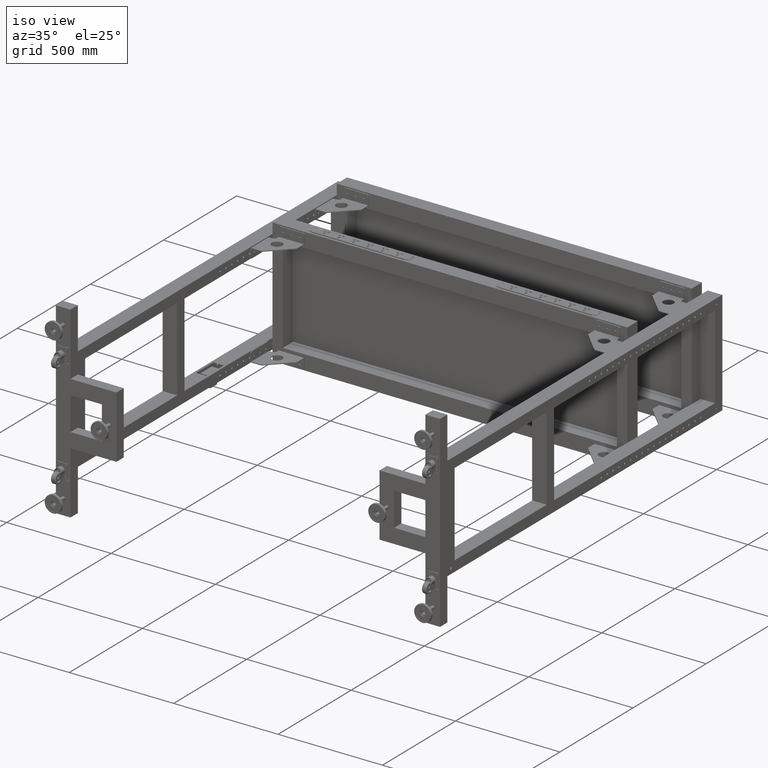
[diagram: clean part render]
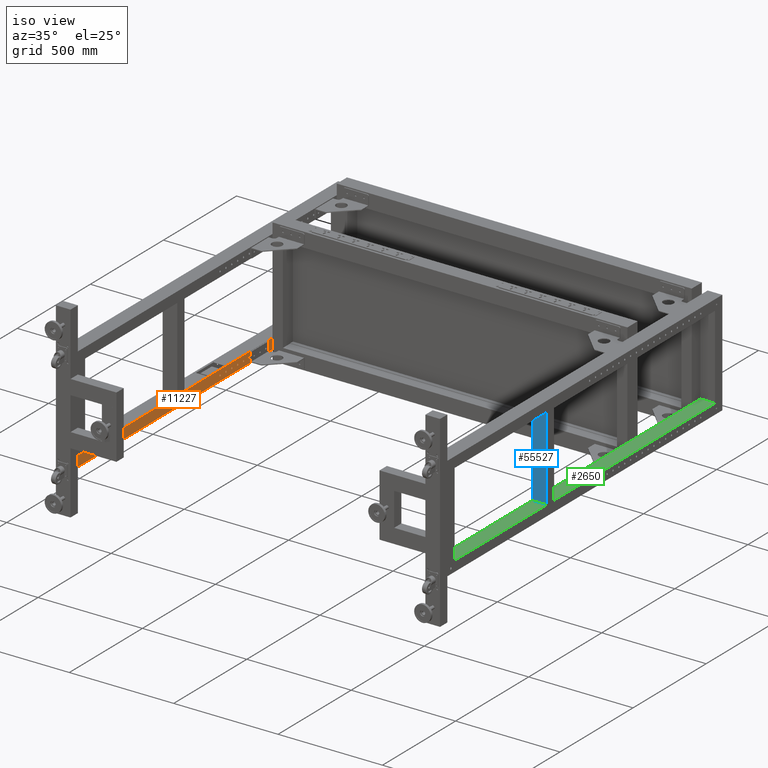
[diagram: same view with three faces highlighted in distinct colors, each labeled with its STEP entity id]
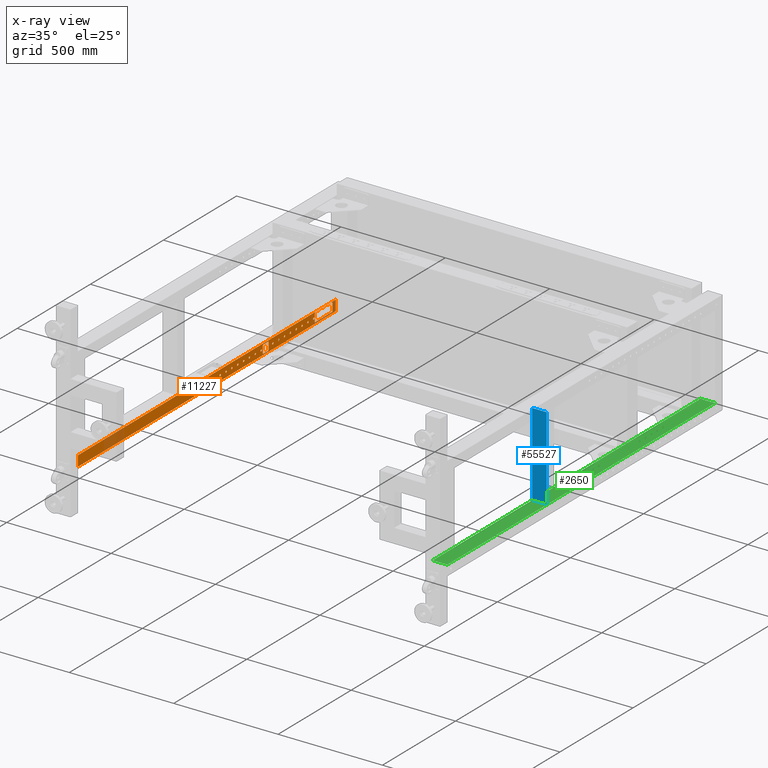
[diagram: x-ray of the same camera — body ghosted, the three highlighted faces saturated]
A machine part, iso view with three faces highlighted in distinct colors.
The next image is the same camera in x-ray (body ghosted, the three faces saturated) — at least one of them is partly hidden behind the body in this view.
Their STEP definitions:

[orange] entity #11227 — the highlighted planar face has unit normal (1, 0, -0).
#244 = VERTEX_POINT ( 'NONE', #6420 ) ;
#471 = DIRECTION ( 'NONE',  ( 1.000000000000000000, 0.000000000000000000, 0.000000000000000000 ) ) ;
#539 = ORIENTED_EDGE ( 'NONE', *, *, #52082, .F. ) ;
#592 = EDGE_CURVE ( 'NONE', #56812, #39507, #69529, .T. ) ;
#723 = CARTESIAN_POINT ( 'NONE',  ( -1268.172487437184827, 489.4410804020110390, -225.0000000000000000 ) ) ;
#734 = CARTESIAN_POINT ( 'NONE',  ( -1268.172487437184827, 420.4410804020109822, -240.0000000000000000 ) ) ;
#917 = EDGE_CURVE ( 'NONE', #71750, #244, #68107, .T. ) ;
#959 = EDGE_CURVE ( 'NONE', #70821, #3868, #71944, .T. ) ;
#979 = DIRECTION ( 'NONE',  ( -2.775557561562890365E-16, 8.326672684688670109E-16, -1.000000000000000000 ) ) ;
#992 = FACE_BOUND ( 'NONE', #26879, .T. ) ;
#1137 = EDGE_CURVE ( 'NONE', #72301, #45992, #70679, .T. ) ;
#1425 = EDGE_CURVE ( 'NONE', #44662, #67855, #3685, .T. ) ;
#1611 = CARTESIAN_POINT ( 'NONE',  ( -1268.172487437184827, 775.9410804020110390, -243.9999999999986926 ) ) ;
#1642 = DIRECTION ( 'NONE',  ( 1.000000000000000000, 0.000000000000000000, 0.000000000000000000 ) ) ;
#1778 = FACE_BOUND ( 'NONE', #13274, .T. ) ;
#1805 = DIRECTION ( 'NONE',  ( 0.000000000000000000, 0.000000000000000000, -1.000000000000000000 ) ) ;
#1944 = CARTESIAN_POINT ( 'NONE',  ( -1268.172487437184827, 769.4410804020110390, -220.5000000000000000 ) ) ;
#2158 = FACE_BOUND ( 'NONE', #42132, .T. ) ;
#2214 = EDGE_LOOP ( 'NONE', ( #35581, #13930 ) ) ;
#2253 = DIRECTION ( 'NONE',  ( 1.000000000000000000, 0.000000000000000000, 0.000000000000000000 ) ) ;
#2334 = CARTESIAN_POINT ( 'NONE',  ( -1268.172487437184827, 609.4410804020110390, -229.5000000000000000 ) ) ;
#2768 = DIRECTION ( 'NONE',  ( 1.000000000000000000, 0.000000000000000000, 0.000000000000000000 ) ) ;
#2782 = ORIENTED_EDGE ( 'NONE', *, *, #12398, .F. ) ;
#2818 = EDGE_CURVE ( 'NONE', #76811, #65071, #64611, .T. ) ;
#2924 = EDGE_CURVE ( 'NONE', #40168, #49149, #41558, .T. ) ;
#2930 = EDGE_CURVE ( 'NONE', #3868, #70821, #17359, .T. ) ;
#2933 = DIRECTION ( 'NONE',  ( 0.000000000000000000, 0.000000000000000000, -1.000000000000000000 ) ) ;
#3139 = EDGE_CURVE ( 'NONE', #3269, #10568, #66898, .T. ) ;
#3269 = VERTEX_POINT ( 'NONE', #38221 ) ;
#3685 = LINE ( 'NONE', #52351, #15772 ) ;
#3846 = VERTEX_POINT ( 'NONE', #32153 ) ;
#3864 = EDGE_CURVE ( 'NONE', #57431, #19480, #68854, .T. ) ;
#3868 = VERTEX_POINT ( 'NONE', #33328 ) ;
#4201 = ORIENTED_EDGE ( 'NONE', *, *, #6977, .F. ) ;
#4351 = VECTOR ( 'NONE', #16446, 1000.000000000000000 ) ;
#4394 = CARTESIAN_POINT ( 'NONE',  ( -1268.172487437184827, 129.4410804020110675, -225.0000000000000000 ) ) ;
#4553 = VERTEX_POINT ( 'NONE', #43861 ) ;
#4696 = CARTESIAN_POINT ( 'NONE',  ( -1268.172487437184827, 455.4410804020110390, -245.0000000000000000 ) ) ;
#4820 = EDGE_CURVE ( 'NONE', #4553, #67749, #69996, .T. ) ;
#5150 = EDGE_CURVE ( 'NONE', #49865, #15423, #69535, .T. ) ;
#5268 = CIRCLE ( 'NONE', #16722, 4.500000000000003553 ) ;
#5315 = LINE ( 'NONE', #10912, #29814 ) ;
#5505 = DIRECTION ( 'NONE',  ( 1.000000000000000000, 0.000000000000000000, 0.000000000000000000 ) ) ;
#5642 = AXIS2_PLACEMENT_3D ( 'NONE', #43006, #5505, #29864 ) ;
#5818 = AXIS2_PLACEMENT_3D ( 'NONE', #30892, #68388, #61991 ) ;
#5847 = CARTESIAN_POINT ( 'NONE',  ( -1268.172487437184827, 489.4410804020110390, -225.0000000000000000 ) ) ;
#5917 = ORIENTED_EDGE ( 'NONE', *, *, #75854, .F. ) ;
#6293 = CARTESIAN_POINT ( 'NONE',  ( -1268.172487437184827, 425.4410804020109822, -240.0000000000000000 ) ) ;
#6373 = DIRECTION ( 'NONE',  ( 1.000000000000000000, 0.000000000000000000, 0.000000000000000000 ) ) ;
#6420 = CARTESIAN_POINT ( 'NONE',  ( -1268.172487437184600, 896.9410804020110390, -207.9999999999986926 ) ) ;
#6977 = EDGE_CURVE ( 'NONE', #65071, #76811, #70409, .T. ) ;
#7062 = CARTESIAN_POINT ( 'NONE',  ( -1268.172487437184827, 529.4410804020111527, -225.0000000000000000 ) ) ;
#7217 = CARTESIAN_POINT ( 'NONE',  ( -1268.172487437184827, 249.4410804020110675, -225.0000000000000000 ) ) ;
#7234 = DIRECTION ( 'NONE',  ( 1.000000000000000000, 0.000000000000000000, 0.000000000000000000 ) ) ;
#7267 = CARTESIAN_POINT ( 'NONE',  ( -1268.172487437184827, 649.4410804020110390, -229.5000000000000000 ) ) ;
#7349 = FACE_BOUND ( 'NONE', #19439, .T. ) ;
#7488 = CARTESIAN_POINT ( 'NONE',  ( -1268.172487437184827, -844.5589195979889610, -250.0000000000000000 ) ) ;
#7591 = EDGE_CURVE ( 'NONE', #58127, #73116, #9274, .T. ) ;
#7608 = VERTEX_POINT ( 'NONE', #54913 ) ;
#7631 = CARTESIAN_POINT ( 'NONE',  ( -1268.172487437184827, 409.4410804020109822, -225.0000000000000000 ) ) ;
#7838 = VECTOR ( 'NONE', #29439, 1000.000000000000000 ) ;
#7924 = EDGE_CURVE ( 'NONE', #37976, #24316, #20870, .T. ) ;
#8045 = CIRCLE ( 'NONE', #71802, 4.500000000000003553 ) ;
#8520 = DIRECTION ( 'NONE',  ( 0.000000000000000000, 0.000000000000000000, -1.000000000000000000 ) ) ;
#8642 = EDGE_CURVE ( 'NONE', #31026, #24248, #72493, .T. ) ;
#8669 = AXIS2_PLACEMENT_3D ( 'NONE', #56796, #50818, #14892 ) ;
#8745 = CARTESIAN_POINT ( 'NONE',  ( -1268.172487437184827, 169.4410804020110106, -225.0000000000000000 ) ) ;
#8802 = DIRECTION ( 'NONE',  ( 1.000000000000000000, 0.000000000000000000, 0.000000000000000000 ) ) ;
#8860 = CARTESIAN_POINT ( 'NONE',  ( -1268.172487437184827, 851.4410804020109254, -243.9899999999986733 ) ) ;
#9249 = ORIENTED_EDGE ( 'NONE', *, *, #917, .T. ) ;
#9266 = AXIS2_PLACEMENT_3D ( 'NONE', #8745, #57048, #33507 ) ;
#9274 = CIRCLE ( 'NONE', #22071, 4.500000000000003553 ) ;
#9369 = DIRECTION ( 'NONE',  ( 0.000000000000000000, -1.000000000000000000, 0.000000000000000000 ) ) ;
#9639 = ORIENTED_EDGE ( 'NONE', *, *, #5150, .T. ) ;
#9694 = CARTESIAN_POINT ( 'NONE',  ( -1268.172487437184600, 889.9410804020109254, -200.9999999999986926 ) ) ;
#9799 = VERTEX_POINT ( 'NONE', #46821 ) ;
#10470 = CIRCLE ( 'NONE', #20679, 4.500000000000003553 ) ;
#10568 = VERTEX_POINT ( 'NONE', #45816 ) ;
#10912 = CARTESIAN_POINT ( 'NONE',  ( -1268.172487437184600, 896.9410804020110390, -200.9999999999986926 ) ) ;
#11197 = EDGE_CURVE ( 'NONE', #10568, #3269, #27013, .T. ) ;
#11227 = ADVANCED_FACE ( 'NONE', ( #62781, #56427, #26505, #25730, #55249, #44459, #19747, #24955, #75166, #32081, #42892, #67227, #43681, #1778, #26124, #7349, #992, #2158, #44074 ), #32486, .T. ) ;
#11834 = EDGE_LOOP ( 'NONE', ( #5917, #61015 ) ) ;
#12020 = EDGE_CURVE ( 'NONE', #73116, #58127, #5268, .T. ) ;
#12242 = DIRECTION ( 'NONE',  ( 1.000000000000000000, 0.000000000000000000, 0.000000000000000000 ) ) ;
#12271 = DIRECTION ( 'NONE',  ( 1.000000000000000000, 0.000000000000000000, 0.000000000000000000 ) ) ;
#12398 = EDGE_CURVE ( 'NONE', #62225, #36461, #62299, .T. ) ;
#12701 = DIRECTION ( 'NONE',  ( 1.000000000000000000, 0.000000000000000000, 0.000000000000000000 ) ) ;
#13051 = ORIENTED_EDGE ( 'NONE', *, *, #35781, .F. ) ;
#13125 = CARTESIAN_POINT ( 'NONE',  ( -1268.172487437184600, 782.9410804020109254, -200.9999999999986926 ) ) ;
#13274 = EDGE_LOOP ( 'NONE', ( #63141, #24244 ) ) ;
#13325 = AXIS2_PLACEMENT_3D ( 'NONE', #13377, #56452, #1805 ) ;
#13377 = CARTESIAN_POINT ( 'NONE',  ( -1268.172487437184827, 209.4410804020110390, -225.0000000000000000 ) ) ;
#13516 = ORIENTED_EDGE ( 'NONE', *, *, #39125, .F. ) ;
#13519 = AXIS2_PLACEMENT_3D ( 'NONE', #38322, #42759, #36754 ) ;
#13930 = ORIENTED_EDGE ( 'NONE', *, *, #2930, .F. ) ;
#14025 = EDGE_LOOP ( 'NONE', ( #4201, #38626 ) ) ;
#14316 = DIRECTION ( 'NONE',  ( 0.000000000000000000, 0.000000000000000000, -1.000000000000000000 ) ) ;
#14440 = CARTESIAN_POINT ( 'NONE',  ( -1268.172487437184827, 569.4410804020110390, -225.0000000000000000 ) ) ;
#14500 = AXIS2_PLACEMENT_3D ( 'NONE', #16236, #28606, #72079 ) ;
#14892 = DIRECTION ( 'NONE',  ( 0.000000000000000000, 0.000000000000000000, -1.000000000000000000 ) ) ;
#15423 = VERTEX_POINT ( 'NONE', #31896 ) ;
#15459 = ORIENTED_EDGE ( 'NONE', *, *, #49503, .F. ) ;
#15772 = VECTOR ( 'NONE', #76678, 1000.000000000000000 ) ;
#16229 = AXIS2_PLACEMENT_3D ( 'NONE', #5847, #12242, #44525 ) ;
#16236 = CARTESIAN_POINT ( 'NONE',  ( -1268.172487437184827, 369.4410804020110959, -225.0000000000000000 ) ) ;
#16446 = DIRECTION ( 'NONE',  ( 0.000000000000000000, -1.000000000000000000, 0.000000000000000000 ) ) ;
#16722 = AXIS2_PLACEMENT_3D ( 'NONE', #37388, #2253, #68889 ) ;
#16993 = CARTESIAN_POINT ( 'NONE',  ( -1268.172487437184827, 129.4410804020110675, -225.0000000000000000 ) ) ;
#17359 = CIRCLE ( 'NONE', #13519, 4.500000000000003553 ) ;
#17754 = LINE ( 'NONE', #55629, #41746 ) ;
#17794 = EDGE_CURVE ( 'NONE', #72301, #15423, #61050, .T. ) ;
#17946 = VERTEX_POINT ( 'NONE', #58216 ) ;
#18226 = CARTESIAN_POINT ( 'NONE',  ( -1268.172487437184827, 460.4410804020110390, -240.0000000000000000 ) ) ;
#18370 = AXIS2_PLACEMENT_3D ( 'NONE', #41451, #52624, #76958 ) ;
#18421 = VERTEX_POINT ( 'NONE', #57723 ) ;
#18444 = CARTESIAN_POINT ( 'NONE',  ( -1268.172487437184827, 729.4410804020110390, -225.0000000000000000 ) ) ;
#18568 = EDGE_LOOP ( 'NONE', ( #63983, #77131 ) ) ;
#18970 = DIRECTION ( 'NONE',  ( 1.000000000000000000, 0.000000000000000000, 0.000000000000000000 ) ) ;
#19100 = CARTESIAN_POINT ( 'NONE',  ( -1268.172487437184827, 425.4410804020109822, -205.0000000000000284 ) ) ;
#19103 = CIRCLE ( 'NONE', #75184, 4.500000000000003553 ) ;
#19438 = EDGE_LOOP ( 'NONE', ( #25846, #43530 ) ) ;
#19439 = EDGE_LOOP ( 'NONE', ( #28288, #78843 ) ) ;
#19480 = VERTEX_POINT ( 'NONE', #19100 ) ;
#19747 = FACE_BOUND ( 'NONE', #78727, .T. ) ;
#20211 = ORIENTED_EDGE ( 'NONE', *, *, #66071, .F. ) ;
#20679 = AXIS2_PLACEMENT_3D ( 'NONE', #723, #67736, #74510 ) ;
#20685 = CARTESIAN_POINT ( 'NONE',  ( -1268.172487437184827, 919.4410804020110390, -200.0000000000000000 ) ) ;
#20768 = AXIS2_PLACEMENT_3D ( 'NONE', #7631, #8802, #43982 ) ;
#20870 = CIRCLE ( 'NONE', #50146, 4.499999999999893419 ) ;
#20903 = CARTESIAN_POINT ( 'NONE',  ( -1268.172487437184827, -844.5589195979889610, -250.0000000000000000 ) ) ;
#21083 = ORIENTED_EDGE ( 'NONE', *, *, #11197, .F. ) ;
#22071 = AXIS2_PLACEMENT_3D ( 'NONE', #62070, #74055, #68083 ) ;
#22749 = ORIENTED_EDGE ( 'NONE', *, *, #17794, .F. ) ;
#23008 = ORIENTED_EDGE ( 'NONE', *, *, #54767, .T. ) ;
#23305 = DIRECTION ( 'NONE',  ( 4.498682352102549724E-16, -0.000000000000000000, 1.000000000000000000 ) ) ;
#23375 = DIRECTION ( 'NONE',  ( 1.000000000000000000, 0.000000000000000000, 0.000000000000000000 ) ) ;
#23594 = CARTESIAN_POINT ( 'NONE',  ( -1268.172487437184827, 569.4410804020110390, -229.5000000000000000 ) ) ;
#23711 = DIRECTION ( 'NONE',  ( 0.000000000000000000, 0.000000000000000000, -1.000000000000000000 ) ) ;
#23772 = ORIENTED_EDGE ( 'NONE', *, *, #60285, .F. ) ;
#24173 = DIRECTION ( 'NONE',  ( -1.000000000000000000, 0.000000000000000000, 3.491776919586969661E-17 ) ) ;
#24244 = ORIENTED_EDGE ( 'NONE', *, *, #7591, .F. ) ;
#24248 = VERTEX_POINT ( 'NONE', #72344 ) ;
#24316 = VERTEX_POINT ( 'NONE', #40725 ) ;
#24688 = DIRECTION ( 'NONE',  ( 1.000000000000000000, 0.000000000000000000, 0.000000000000000000 ) ) ;
#24955 = FACE_BOUND ( 'NONE', #47231, .T. ) ;
#25655 = DIRECTION ( 'NONE',  ( 0.000000000000000000, 1.000000000000000000, 0.000000000000000000 ) ) ;
#25730 = FACE_BOUND ( 'NONE', #2214, .T. ) ;
#25846 = ORIENTED_EDGE ( 'NONE', *, *, #53286, .F. ) ;
#25917 = EDGE_CURVE ( 'NONE', #24316, #37976, #71903, .T. ) ;
#26124 = FACE_BOUND ( 'NONE', #71289, .T. ) ;
#26220 = CARTESIAN_POINT ( 'NONE',  ( -1268.172487437184827, 425.4410804020109822, -245.0000000000000000 ) ) ;
#26505 = FACE_BOUND ( 'NONE', #19438, .T. ) ;
#26797 = CIRCLE ( 'NONE', #33169, 4.500000000000003553 ) ;
#26879 = EDGE_LOOP ( 'NONE', ( #73895, #13516 ) ) ;
#26928 = EDGE_CURVE ( 'NONE', #24248, #44662, #42490, .T. ) ;
#27013 = CIRCLE ( 'NONE', #37209, 4.500000000000003553 ) ;
#27869 = CARTESIAN_POINT ( 'NONE',  ( -1268.172487437184827, 649.4410804020110390, -220.5000000000000000 ) ) ;
#28288 = ORIENTED_EDGE ( 'NONE', *, *, #68876, .F. ) ;
#28446 = ORIENTED_EDGE ( 'NONE', *, *, #65708, .F. ) ;
#28605 = VERTEX_POINT ( 'NONE', #20903 ) ;
#28606 = DIRECTION ( 'NONE',  ( 1.000000000000000000, 0.000000000000000000, 0.000000000000000000 ) ) ;
#28771 = DIRECTION ( 'NONE',  ( 1.000000000000000000, 0.000000000000000000, 0.000000000000000000 ) ) ;
#28797 = VERTEX_POINT ( 'NONE', #67512 ) ;
#29377 = DIRECTION ( 'NONE',  ( 1.000000000000000000, 0.000000000000000000, 0.000000000000000000 ) ) ;
#29439 = DIRECTION ( 'NONE',  ( 0.000000000000000000, 1.000000000000000000, 0.000000000000000000 ) ) ;
#29505 = DIRECTION ( 'NONE',  ( 1.000000000000000000, 0.000000000000000000, 0.000000000000000000 ) ) ;
#29814 = VECTOR ( 'NONE', #23305, 1000.000000000000000 ) ;
#29864 = DIRECTION ( 'NONE',  ( 0.000000000000000000, 0.000000000000000000, -1.000000000000000000 ) ) ;
#30202 = ORIENTED_EDGE ( 'NONE', *, *, #7924, .F. ) ;
#30204 = AXIS2_PLACEMENT_3D ( 'NONE', #7217, #471, #43544 ) ;
#30279 = ORIENTED_EDGE ( 'NONE', *, *, #72019, .F. ) ;
#30674 = DIRECTION ( 'NONE',  ( 0.000000000000000000, 0.000000000000000000, -1.000000000000000000 ) ) ;
#30822 = EDGE_CURVE ( 'NONE', #71577, #52954, #60259, .T. ) ;
#30892 = CARTESIAN_POINT ( 'NONE',  ( -1268.172487437184827, 769.4410804020110390, -225.0000000000000000 ) ) ;
#30900 = CARTESIAN_POINT ( 'NONE',  ( -1268.172487437184827, 455.4410804020110390, -205.0000000000000284 ) ) ;
#31026 = VERTEX_POINT ( 'NONE', #26220 ) ;
#31543 = EDGE_CURVE ( 'NONE', #49865, #244, #5315, .T. ) ;
#31583 = DIRECTION ( 'NONE',  ( 0.000000000000000000, 0.000000000000000000, -1.000000000000000000 ) ) ;
#31758 = EDGE_CURVE ( 'NONE', #71750, #45992, #35898, .T. ) ;
#31896 = CARTESIAN_POINT ( 'NONE',  ( -1268.172487437184827, 775.9410804020110390, -243.9899999999987017 ) ) ;
#32081 = FACE_BOUND ( 'NONE', #33162, .T. ) ;
#32100 = CARTESIAN_POINT ( 'NONE',  ( -1268.172487437184827, 369.4410804020110959, -225.0000000000000000 ) ) ;
#32153 = CARTESIAN_POINT ( 'NONE',  ( -1268.172487437184827, -844.5589195979889610, -200.0000000000000000 ) ) ;
#32461 = AXIS2_PLACEMENT_3D ( 'NONE', #78724, #47665, #23711 ) ;
#32465 = EDGE_CURVE ( 'NONE', #76030, #46110, #26797, .T. ) ;
#32486 = PLANE ( 'NONE',  #65246 ) ;
#32536 = AXIS2_PLACEMENT_3D ( 'NONE', #4394, #29505, #60596 ) ;
#32749 = ORIENTED_EDGE ( 'NONE', *, *, #4820, .F. ) ;
#32903 = CARTESIAN_POINT ( 'NONE',  ( -1268.172487437184827, 420.4410804020109822, -240.0000000000000000 ) ) ;
#33162 = EDGE_LOOP ( 'NONE', ( #28446, #69585 ) ) ;
#33169 = AXIS2_PLACEMENT_3D ( 'NONE', #35537, #28771, #41532 ) ;
#33328 = CARTESIAN_POINT ( 'NONE',  ( -1268.172487437184827, 209.4410804020110390, -220.5000000000000000 ) ) ;
#33507 = DIRECTION ( 'NONE',  ( 0.000000000000000000, 0.000000000000000000, -1.000000000000000000 ) ) ;
#33916 = AXIS2_PLACEMENT_3D ( 'NONE', #75538, #76319, #2933 ) ;
#34311 = AXIS2_PLACEMENT_3D ( 'NONE', #32100, #18970, #50462 ) ;
#34341 = AXIS2_PLACEMENT_3D ( 'NONE', #6293, #24688, #55387 ) ;
#34708 = ORIENTED_EDGE ( 'NONE', *, *, #8642, .F. ) ;
#34880 = ORIENTED_EDGE ( 'NONE', *, *, #58201, .F. ) ;
#34981 = DIRECTION ( 'NONE',  ( 0.000000000000000000, 0.000000000000000000, -1.000000000000000000 ) ) ;
#35387 = AXIS2_PLACEMENT_3D ( 'NONE', #78958, #49852, #48674 ) ;
#35495 = DIRECTION ( 'NONE',  ( 1.000000000000000000, 0.000000000000000000, 0.000000000000000000 ) ) ;
#35537 = CARTESIAN_POINT ( 'NONE',  ( -1268.172487437184827, 769.4410804020110390, -225.0000000000000000 ) ) ;
#35574 = VECTOR ( 'NONE', #74137, 1000.000000000000000 ) ;
#35581 = ORIENTED_EDGE ( 'NONE', *, *, #959, .F. ) ;
#35720 = AXIS2_PLACEMENT_3D ( 'NONE', #61027, #6373, #49881 ) ;
#35781 = EDGE_CURVE ( 'NONE', #36461, #62225, #71810, .T. ) ;
#35898 = LINE ( 'NONE', #52688, #61625 ) ;
#36111 = AXIS2_PLACEMENT_3D ( 'NONE', #63409, #2768, #63800 ) ;
#36312 = CARTESIAN_POINT ( 'NONE',  ( -1268.172487437184600, 775.9410804020110390, -207.9999999999986926 ) ) ;
#36461 = VERTEX_POINT ( 'NONE', #48353 ) ;
#36754 = DIRECTION ( 'NONE',  ( 0.000000000000000000, 0.000000000000000000, -1.000000000000000000 ) ) ;
#36907 = EDGE_CURVE ( 'NONE', #9799, #41518, #45258, .T. ) ;
#37209 = AXIS2_PLACEMENT_3D ( 'NONE', #16993, #23375, #41714 ) ;
#37283 = DIRECTION ( 'NONE',  ( 1.000000000000000000, 0.000000000000000000, -2.775557561562890365E-16 ) ) ;
#37388 = CARTESIAN_POINT ( 'NONE',  ( -1268.172487437184827, 649.4410804020110390, -225.0000000000000000 ) ) ;
#37976 = VERTEX_POINT ( 'NONE', #41500 ) ;
#38055 = DIRECTION ( 'NONE',  ( 0.000000000000000000, 0.000000000000000000, -1.000000000000000000 ) ) ;
#38221 = CARTESIAN_POINT ( 'NONE',  ( -1268.172487437184827, 129.4410804020110675, -229.5000000000000000 ) ) ;
#38313 = VERTEX_POINT ( 'NONE', #20685 ) ;
#38322 = CARTESIAN_POINT ( 'NONE',  ( -1268.172487437184827, 209.4410804020110390, -225.0000000000000000 ) ) ;
#38607 = DIRECTION ( 'NONE',  ( 0.000000000000000000, 0.000000000000000000, -1.000000000000000000 ) ) ;
#38626 = ORIENTED_EDGE ( 'NONE', *, *, #2818, .F. ) ;
#38642 = CARTESIAN_POINT ( 'NONE',  ( -1268.172487437184827, 609.4410804020110390, -220.5000000000000000 ) ) ;
#38657 = ORIENTED_EDGE ( 'NONE', *, *, #31758, .F. ) ;
#38660 = DIRECTION ( 'NONE',  ( 1.000000000000000000, 0.000000000000000000, 0.000000000000000000 ) ) ;
#38741 = CIRCLE ( 'NONE', #18370, 4.499999999999893419 ) ;
#38837 = AXIS2_PLACEMENT_3D ( 'NONE', #78792, #24173, #66869 ) ;
#38924 = CARTESIAN_POINT ( 'NONE',  ( -1268.172487437184827, 455.4410804020110390, -205.0000000000000284 ) ) ;
#39058 = EDGE_CURVE ( 'NONE', #53783, #28797, #56801, .T. ) ;
#39125 = EDGE_CURVE ( 'NONE', #46110, #76030, #78609, .T. ) ;
#39275 = EDGE_CURVE ( 'NONE', #19480, #4553, #45348, .T. ) ;
#39497 = CARTESIAN_POINT ( 'NONE',  ( -1268.172487437184827, 569.4410804020110390, -220.5000000000000000 ) ) ;
#39507 = VERTEX_POINT ( 'NONE', #2334 ) ;
#39552 = DIRECTION ( 'NONE',  ( 0.000000000000000000, 0.000000000000000000, -1.000000000000000000 ) ) ;
#39829 = CARTESIAN_POINT ( 'NONE',  ( -1268.172487437184827, -844.5589195979889610, -200.0000000000000000 ) ) ;
#40168 = VERTEX_POINT ( 'NONE', #74391 ) ;
#40185 = AXIS2_PLACEMENT_3D ( 'NONE', #72205, #41869, #59804 ) ;
#40410 = ORIENTED_EDGE ( 'NONE', *, *, #39058, .F. ) ;
#40414 = AXIS2_PLACEMENT_3D ( 'NONE', #74376, #74763, #38055 ) ;
#40692 = ORIENTED_EDGE ( 'NONE', *, *, #31543, .F. ) ;
#40725 = CARTESIAN_POINT ( 'NONE',  ( -1268.172487437184827, 289.4410804020109822, -229.5000000000000000 ) ) ;
#40848 = CIRCLE ( 'NONE', #35720, 4.500000000000003553 ) ;
#41239 = VECTOR ( 'NONE', #9369, 1000.000000000000000 ) ;
#41451 = CARTESIAN_POINT ( 'NONE',  ( -1268.172487437184827, 329.4410804020110390, -225.0000000000000000 ) ) ;
#41500 = CARTESIAN_POINT ( 'NONE',  ( -1268.172487437184827, 289.4410804020109822, -220.5000000000000000 ) ) ;
#41518 = VERTEX_POINT ( 'NONE', #72354 ) ;
#41532 = DIRECTION ( 'NONE',  ( 0.000000000000000000, 0.000000000000000000, -1.000000000000000000 ) ) ;
#41558 = CIRCLE ( 'NONE', #46510, 4.500000000000003553 ) ;
#41636 = EDGE_CURVE ( 'NONE', #28605, #68446, #43203, .T. ) ;
#41714 = DIRECTION ( 'NONE',  ( 0.000000000000000000, 0.000000000000000000, -1.000000000000000000 ) ) ;
#41746 = VECTOR ( 'NONE', #979, 1000.000000000000000 ) ;
#41775 = ORIENTED_EDGE ( 'NONE', *, *, #1137, .T. ) ;
#41869 = DIRECTION ( 'NONE',  ( 1.000000000000000000, 0.000000000000000000, 0.000000000000000000 ) ) ;
#42132 = EDGE_LOOP ( 'NONE', ( #539, #70612, #49666, #34708, #58182, #32749, #66921, #76857 ) ) ;
#42242 = DIRECTION ( 'NONE',  ( 0.000000000000000000, 0.000000000000000000, -1.000000000000000000 ) ) ;
#42490 = CIRCLE ( 'NONE', #36111, 5.000000000000004441 ) ;
#42759 = DIRECTION ( 'NONE',  ( 1.000000000000000000, 0.000000000000000000, 0.000000000000000000 ) ) ;
#42892 = FACE_BOUND ( 'NONE', #69992, .T. ) ;
#43006 = CARTESIAN_POINT ( 'NONE',  ( -1268.172487437184827, 289.4410804020109822, -225.0000000000000000 ) ) ;
#43203 = LINE ( 'NONE', #73528, #69893 ) ;
#43272 = CIRCLE ( 'NONE', #34341, 5.000000000000004441 ) ;
#43384 = DIRECTION ( 'NONE',  ( 0.000000000000000000, 0.000000000000000000, -1.000000000000000000 ) ) ;
#43515 = ORIENTED_EDGE ( 'NONE', *, *, #36907, .F. ) ;
#43530 = ORIENTED_EDGE ( 'NONE', *, *, #48892, .F. ) ;
#43544 = DIRECTION ( 'NONE',  ( 0.000000000000000000, 0.000000000000000000, -1.000000000000000000 ) ) ;
#43681 = FACE_BOUND ( 'NONE', #11834, .T. ) ;
#43692 = CIRCLE ( 'NONE', #9266, 4.500000000000003553 ) ;
#43720 = CARTESIAN_POINT ( 'NONE',  ( -1268.172487437184827, 769.4410804020110390, -229.5000000000000000 ) ) ;
#43861 = CARTESIAN_POINT ( 'NONE',  ( -1268.172487437184827, 420.4410804020109822, -210.0000000000000000 ) ) ;
#43982 = DIRECTION ( 'NONE',  ( 0.000000000000000000, 0.000000000000000000, -1.000000000000000000 ) ) ;
#44074 = FACE_OUTER_BOUND ( 'NONE', #56906, .T. ) ;
#44459 = FACE_BOUND ( 'NONE', #49797, .T. ) ;
#44525 = DIRECTION ( 'NONE',  ( 0.000000000000000000, 0.000000000000000000, -1.000000000000000000 ) ) ;
#44662 = VERTEX_POINT ( 'NONE', #18226 ) ;
#44848 = CARTESIAN_POINT ( 'NONE',  ( -1268.172487437184827, 169.4410804020110106, -225.0000000000000000 ) ) ;
#45258 = CIRCLE ( 'NONE', #60503, 4.499999999999893419 ) ;
#45348 = CIRCLE ( 'NONE', #33916, 5.000000000000004441 ) ;
#45816 = CARTESIAN_POINT ( 'NONE',  ( -1268.172487437184827, 129.4410804020110675, -220.5000000000000000 ) ) ;
#45992 = VERTEX_POINT ( 'NONE', #13125 ) ;
#46110 = VERTEX_POINT ( 'NONE', #1944 ) ;
#46376 = EDGE_LOOP ( 'NONE', ( #53661, #21083 ) ) ;
#46510 = AXIS2_PLACEMENT_3D ( 'NONE', #18444, #1642, #74260 ) ;
#46557 = CARTESIAN_POINT ( 'NONE',  ( -1268.172487437184827, 455.4410804020110390, -210.0000000000000000 ) ) ;
#46563 = DIRECTION ( 'NONE',  ( 0.000000000000000000, 0.000000000000000000, -1.000000000000000000 ) ) ;
#46623 = LINE ( 'NONE', #39829, #7838 ) ;
#46821 = CARTESIAN_POINT ( 'NONE',  ( -1268.172487437184827, 329.4410804020110390, -229.5000000000000000 ) ) ;
#47231 = EDGE_LOOP ( 'NONE', ( #2782, #13051 ) ) ;
#47239 = EDGE_CURVE ( 'NONE', #52954, #71577, #62123, .T. ) ;
#47275 = ORIENTED_EDGE ( 'NONE', *, *, #25917, .F. ) ;
#47284 = CARTESIAN_POINT ( 'NONE',  ( -1268.172487437184827, 209.4410804020110390, -229.5000000000000000 ) ) ;
#47665 = DIRECTION ( 'NONE',  ( -1.000000000000000000, 0.000000000000000000, 3.491776919586969661E-17 ) ) ;
#47772 = VECTOR ( 'NONE', #52851, 1000.000000000000000 ) ;
#48353 = CARTESIAN_POINT ( 'NONE',  ( -1268.172487437184827, 369.4410804020110959, -220.5000000000000000 ) ) ;
#48674 = DIRECTION ( 'NONE',  ( 0.000000000000000000, 0.000000000000000000, -1.000000000000000000 ) ) ;
#48892 = EDGE_CURVE ( 'NONE', #55581, #55531, #19103, .T. ) ;
#49149 = VERTEX_POINT ( 'NONE', #74696 ) ;
#49350 = VERTEX_POINT ( 'NONE', #23594 ) ;
#49473 = CARTESIAN_POINT ( 'NONE',  ( -1268.172487437184827, 569.4410804020110390, -225.0000000000000000 ) ) ;
#49503 = EDGE_CURVE ( 'NONE', #28797, #53783, #40848, .T. ) ;
#49666 = ORIENTED_EDGE ( 'NONE', *, *, #26928, .F. ) ;
#49797 = EDGE_LOOP ( 'NONE', ( #47275, #30202 ) ) ;
#49852 = DIRECTION ( 'NONE',  ( 1.000000000000000000, 0.000000000000000000, 0.000000000000000000 ) ) ;
#49865 = VERTEX_POINT ( 'NONE', #61629 ) ;
#49881 = DIRECTION ( 'NONE',  ( 0.000000000000000000, 0.000000000000000000, -1.000000000000000000 ) ) ;
#50146 = AXIS2_PLACEMENT_3D ( 'NONE', #57086, #7234, #31583 ) ;
#50462 = DIRECTION ( 'NONE',  ( 0.000000000000000000, 0.000000000000000000, -1.000000000000000000 ) ) ;
#50739 = CIRCLE ( 'NONE', #8669, 4.500000000000003553 ) ;
#50818 = DIRECTION ( 'NONE',  ( 1.000000000000000000, 0.000000000000000000, 0.000000000000000000 ) ) ;
#51189 = EDGE_CURVE ( 'NONE', #77365, #17946, #10470, .T. ) ;
#51569 = VECTOR ( 'NONE', #72122, 1000.000000000000000 ) ;
#51619 = CARTESIAN_POINT ( 'NONE',  ( -1268.172487437184827, 529.4410804020111527, -229.5000000000000000 ) ) ;
#52082 = EDGE_CURVE ( 'NONE', #67855, #57431, #53757, .T. ) ;
#52351 = CARTESIAN_POINT ( 'NONE',  ( -1268.172487437184827, 460.4410804020110390, -240.0000000000000000 ) ) ;
#52450 = CARTESIAN_POINT ( 'NONE',  ( -1268.172487437184827, 489.4410804020110390, -220.5000000000000000 ) ) ;
#52546 = CARTESIAN_POINT ( 'NONE',  ( -1268.172487437184827, 689.4410804020110390, -220.5000000000000000 ) ) ;
#52624 = DIRECTION ( 'NONE',  ( 1.000000000000000000, 0.000000000000000000, 0.000000000000000000 ) ) ;
#52688 = CARTESIAN_POINT ( 'NONE',  ( -1268.172487437184600, 775.9410804020110390, -200.9999999999986926 ) ) ;
#52851 = DIRECTION ( 'NONE',  ( -4.625929269271499719E-16, -3.700743415417200564E-15, -1.000000000000000000 ) ) ;
#52954 = VERTEX_POINT ( 'NONE', #57525 ) ;
#53286 = EDGE_CURVE ( 'NONE', #55531, #55581, #43692, .T. ) ;
#53444 = CARTESIAN_POINT ( 'NONE',  ( -1268.172487437184827, 329.4410804020110390, -225.0000000000000000 ) ) ;
#53661 = ORIENTED_EDGE ( 'NONE', *, *, #3139, .F. ) ;
#53706 = CARTESIAN_POINT ( 'NONE',  ( -1268.172487437184827, 609.4410804020110390, -225.0000000000000000 ) ) ;
#53757 = CIRCLE ( 'NONE', #74146, 5.000000000000004441 ) ;
#53783 = VERTEX_POINT ( 'NONE', #52546 ) ;
#54243 = ORIENTED_EDGE ( 'NONE', *, *, #66236, .F. ) ;
#54767 = EDGE_CURVE ( 'NONE', #3846, #28605, #67764, .T. ) ;
#54913 = CARTESIAN_POINT ( 'NONE',  ( -1268.172487437184827, 409.4410804020109822, -220.5000000000000000 ) ) ;
#55249 = FACE_BOUND ( 'NONE', #14025, .T. ) ;
#55387 = DIRECTION ( 'NONE',  ( 0.000000000000000000, 0.000000000000000000, 1.000000000000000000 ) ) ;
#55531 = VERTEX_POINT ( 'NONE', #56976 ) ;
#55581 = VERTEX_POINT ( 'NONE', #69354 ) ;
#55629 = CARTESIAN_POINT ( 'NONE',  ( -1268.172487437184827, 919.4410804020110390, -250.0000000000000000 ) ) ;
#55691 = CIRCLE ( 'NONE', #16229, 4.500000000000003553 ) ;
#56075 = CARTESIAN_POINT ( 'NONE',  ( -1268.172487437184827, 369.4410804020110959, -229.5000000000000000 ) ) ;
#56427 = FACE_BOUND ( 'NONE', #46376, .T. ) ;
#56452 = DIRECTION ( 'NONE',  ( 1.000000000000000000, 0.000000000000000000, 0.000000000000000000 ) ) ;
#56796 = CARTESIAN_POINT ( 'NONE',  ( -1268.172487437184827, 409.4410804020109822, -225.0000000000000000 ) ) ;
#56801 = CIRCLE ( 'NONE', #40414, 4.500000000000003553 ) ;
#56812 = VERTEX_POINT ( 'NONE', #38642 ) ;
#56906 = EDGE_LOOP ( 'NONE', ( #20211, #34880, #23008, #72941 ) ) ;
#56976 = CARTESIAN_POINT ( 'NONE',  ( -1268.172487437184827, 169.4410804020110106, -229.5000000000000000 ) ) ;
#57048 = DIRECTION ( 'NONE',  ( 1.000000000000000000, 0.000000000000000000, 0.000000000000000000 ) ) ;
#57086 = CARTESIAN_POINT ( 'NONE',  ( -1268.172487437184827, 289.4410804020109822, -225.0000000000000000 ) ) ;
#57431 = VERTEX_POINT ( 'NONE', #30900 ) ;
#57525 = CARTESIAN_POINT ( 'NONE',  ( -1268.172487437184827, 529.4410804020111527, -220.5000000000000000 ) ) ;
#57723 = CARTESIAN_POINT ( 'NONE',  ( -1268.172487437184827, 409.4410804020109822, -229.5000000000000000 ) ) ;
#58127 = VERTEX_POINT ( 'NONE', #27869 ) ;
#58182 = ORIENTED_EDGE ( 'NONE', *, *, #67778, .F. ) ;
#58201 = EDGE_CURVE ( 'NONE', #3846, #38313, #46623, .T. ) ;
#58216 = CARTESIAN_POINT ( 'NONE',  ( -1268.172487437184827, 489.4410804020110390, -229.5000000000000000 ) ) ;
#59707 = EDGE_CURVE ( 'NONE', #78031, #49350, #62809, .T. ) ;
#59804 = DIRECTION ( 'NONE',  ( 0.000000000000000000, 0.000000000000000000, -1.000000000000000000 ) ) ;
#59889 = CARTESIAN_POINT ( 'NONE',  ( -1268.172487437184827, 249.4410804020110675, -220.5000000000000000 ) ) ;
#60125 = EDGE_LOOP ( 'NONE', ( #54243, #30279 ) ) ;
#60218 = DIRECTION ( 'NONE',  ( 0.000000000000000000, -1.000000000000000000, 0.000000000000000000 ) ) ;
#60259 = CIRCLE ( 'NONE', #65363, 4.500000000000003553 ) ;
#60285 = EDGE_CURVE ( 'NONE', #41518, #9799, #38741, .T. ) ;
#60503 = AXIS2_PLACEMENT_3D ( 'NONE', #53444, #67378, #42242 ) ;
#60596 = DIRECTION ( 'NONE',  ( 0.000000000000000000, 0.000000000000000000, -1.000000000000000000 ) ) ;
#60680 = CARTESIAN_POINT ( 'NONE',  ( -1268.172487437184827, 919.4410804020135402, -250.0000000000000000 ) ) ;
#61015 = ORIENTED_EDGE ( 'NONE', *, *, #592, .F. ) ;
#61027 = CARTESIAN_POINT ( 'NONE',  ( -1268.172487437184827, 689.4410804020110390, -225.0000000000000000 ) ) ;
#61050 = LINE ( 'NONE', #1611, #70915 ) ;
#61625 = VECTOR ( 'NONE', #60218, 1000.000000000000000 ) ;
#61629 = CARTESIAN_POINT ( 'NONE',  ( -1268.172487437184827, 896.9410804020110390, -243.9899999999986733 ) ) ;
#61654 = CIRCLE ( 'NONE', #70552, 4.500000000000003553 ) ;
#61991 = DIRECTION ( 'NONE',  ( 0.000000000000000000, 0.000000000000000000, -1.000000000000000000 ) ) ;
#62070 = CARTESIAN_POINT ( 'NONE',  ( -1268.172487437184827, 649.4410804020110390, -225.0000000000000000 ) ) ;
#62123 = CIRCLE ( 'NONE', #35387, 4.500000000000003553 ) ;
#62225 = VERTEX_POINT ( 'NONE', #56075 ) ;
#62299 = CIRCLE ( 'NONE', #34311, 4.500000000000003553 ) ;
#62382 = DIRECTION ( 'NONE',  ( -2.775557561562890365E-16, 0.000000000000000000, -1.000000000000000000 ) ) ;
#62781 = FACE_BOUND ( 'NONE', #75066, .T. ) ;
#62809 = CIRCLE ( 'NONE', #70460, 4.500000000000003553 ) ;
#63062 = CARTESIAN_POINT ( 'NONE',  ( -1268.172487437184827, 249.4410804020110675, -229.5000000000000000 ) ) ;
#63108 = DIRECTION ( 'NONE',  ( 1.000000000000000000, 0.000000000000000000, 0.000000000000000000 ) ) ;
#63141 = ORIENTED_EDGE ( 'NONE', *, *, #12020, .F. ) ;
#63409 = CARTESIAN_POINT ( 'NONE',  ( -1268.172487437184827, 455.4410804020110390, -240.0000000000000000 ) ) ;
#63580 = AXIS2_PLACEMENT_3D ( 'NONE', #68543, #12701, #38607 ) ;
#63800 = DIRECTION ( 'NONE',  ( 0.000000000000000000, 0.000000000000000000, -1.000000000000000000 ) ) ;
#63983 = ORIENTED_EDGE ( 'NONE', *, *, #72430, .F. ) ;
#64100 = DIRECTION ( 'NONE',  ( 1.000000000000000000, 0.000000000000000000, 0.000000000000000000 ) ) ;
#64611 = CIRCLE ( 'NONE', #30204, 4.499999999999893419 ) ;
#65071 = VERTEX_POINT ( 'NONE', #63062 ) ;
#65246 = AXIS2_PLACEMENT_3D ( 'NONE', #67615, #37283, #62382 ) ;
#65363 = AXIS2_PLACEMENT_3D ( 'NONE', #7062, #12271, #43384 ) ;
#65708 = EDGE_CURVE ( 'NONE', #17946, #77365, #55691, .T. ) ;
#66071 = EDGE_CURVE ( 'NONE', #38313, #68446, #17754, .T. ) ;
#66236 = EDGE_CURVE ( 'NONE', #18421, #7608, #50739, .T. ) ;
#66869 = DIRECTION ( 'NONE',  ( 0.000000000000000000, 0.000000000000000000, -1.000000000000000000 ) ) ;
#66898 = CIRCLE ( 'NONE', #32536, 4.500000000000003553 ) ;
#66921 = ORIENTED_EDGE ( 'NONE', *, *, #39275, .F. ) ;
#67227 = FACE_BOUND ( 'NONE', #18568, .T. ) ;
#67378 = DIRECTION ( 'NONE',  ( 1.000000000000000000, 0.000000000000000000, 0.000000000000000000 ) ) ;
#67418 = CIRCLE ( 'NONE', #63580, 4.500000000000003553 ) ;
#67512 = CARTESIAN_POINT ( 'NONE',  ( -1268.172487437184827, 689.4410804020110390, -229.5000000000000000 ) ) ;
#67615 = CARTESIAN_POINT ( 'NONE',  ( -1268.172487437184827, -844.5589195979889610, -250.0000000000000000 ) ) ;
#67736 = DIRECTION ( 'NONE',  ( 1.000000000000000000, 0.000000000000000000, 0.000000000000000000 ) ) ;
#67749 = VERTEX_POINT ( 'NONE', #734 ) ;
#67764 = LINE ( 'NONE', #7488, #35574 ) ;
#67778 = EDGE_CURVE ( 'NONE', #67749, #31026, #43272, .T. ) ;
#67855 = VERTEX_POINT ( 'NONE', #69324 ) ;
#68047 = ORIENTED_EDGE ( 'NONE', *, *, #30822, .F. ) ;
#68083 = DIRECTION ( 'NONE',  ( 0.000000000000000000, 0.000000000000000000, -1.000000000000000000 ) ) ;
#68107 = CIRCLE ( 'NONE', #38837, 7.000000000000006217 ) ;
#68388 = DIRECTION ( 'NONE',  ( 1.000000000000000000, 0.000000000000000000, 0.000000000000000000 ) ) ;
#68446 = VERTEX_POINT ( 'NONE', #60680 ) ;
#68543 = CARTESIAN_POINT ( 'NONE',  ( -1268.172487437184827, 729.4410804020110390, -225.0000000000000000 ) ) ;
#68854 = LINE ( 'NONE', #38924, #41239 ) ;
#68876 = EDGE_CURVE ( 'NONE', #49149, #40168, #67418, .T. ) ;
#68889 = DIRECTION ( 'NONE',  ( 0.000000000000000000, 0.000000000000000000, -1.000000000000000000 ) ) ;
#69189 = DIRECTION ( 'NONE',  ( 1.000000000000000000, 0.000000000000000000, 0.000000000000000000 ) ) ;
#69324 = CARTESIAN_POINT ( 'NONE',  ( -1268.172487437184827, 460.4410804020110390, -210.0000000000000000 ) ) ;
#69354 = CARTESIAN_POINT ( 'NONE',  ( -1268.172487437184827, 169.4410804020110106, -220.5000000000000000 ) ) ;
#69529 = CIRCLE ( 'NONE', #40185, 4.500000000000003553 ) ;
#69535 = LINE ( 'NONE', #8860, #4351 ) ;
#69585 = ORIENTED_EDGE ( 'NONE', *, *, #51189, .F. ) ;
#69893 = VECTOR ( 'NONE', #25655, 1000.000000000000000 ) ;
#69992 = EDGE_LOOP ( 'NONE', ( #68047, #77152 ) ) ;
#69996 = LINE ( 'NONE', #32903, #47772 ) ;
#70409 = CIRCLE ( 'NONE', #76777, 4.499999999999893419 ) ;
#70427 = CIRCLE ( 'NONE', #20768, 4.500000000000003553 ) ;
#70460 = AXIS2_PLACEMENT_3D ( 'NONE', #14440, #63108, #39552 ) ;
#70552 = AXIS2_PLACEMENT_3D ( 'NONE', #53706, #29377, #46563 ) ;
#70612 = ORIENTED_EDGE ( 'NONE', *, *, #1425, .F. ) ;
#70679 = CIRCLE ( 'NONE', #32461, 7.000000000000006217 ) ;
#70821 = VERTEX_POINT ( 'NONE', #47284 ) ;
#70915 = VECTOR ( 'NONE', #73442, 1000.000000000000000 ) ;
#71289 = EDGE_LOOP ( 'NONE', ( #15459, #40410 ) ) ;
#71577 = VERTEX_POINT ( 'NONE', #51619 ) ;
#71750 = VERTEX_POINT ( 'NONE', #9694 ) ;
#71802 = AXIS2_PLACEMENT_3D ( 'NONE', #49473, #38660, #14316 ) ;
#71810 = CIRCLE ( 'NONE', #14500, 4.500000000000003553 ) ;
#71903 = CIRCLE ( 'NONE', #5642, 4.499999999999893419 ) ;
#71944 = CIRCLE ( 'NONE', #13325, 4.500000000000003553 ) ;
#72019 = EDGE_CURVE ( 'NONE', #7608, #18421, #70427, .T. ) ;
#72079 = DIRECTION ( 'NONE',  ( 0.000000000000000000, 0.000000000000000000, -1.000000000000000000 ) ) ;
#72122 = DIRECTION ( 'NONE',  ( 0.000000000000000000, 1.000000000000000000, 0.000000000000000000 ) ) ;
#72205 = CARTESIAN_POINT ( 'NONE',  ( -1268.172487437184827, 609.4410804020110390, -225.0000000000000000 ) ) ;
#72301 = VERTEX_POINT ( 'NONE', #36312 ) ;
#72344 = CARTESIAN_POINT ( 'NONE',  ( -1268.172487437184827, 455.4410804020110390, -245.0000000000000000 ) ) ;
#72354 = CARTESIAN_POINT ( 'NONE',  ( -1268.172487437184827, 329.4410804020110390, -220.5000000000000000 ) ) ;
#72430 = EDGE_CURVE ( 'NONE', #49350, #78031, #8045, .T. ) ;
#72493 = LINE ( 'NONE', #4696, #51569 ) ;
#72941 = ORIENTED_EDGE ( 'NONE', *, *, #41636, .T. ) ;
#73116 = VERTEX_POINT ( 'NONE', #7267 ) ;
#73442 = DIRECTION ( 'NONE',  ( -4.498682352102549724E-16, 0.000000000000000000, -1.000000000000000000 ) ) ;
#73528 = CARTESIAN_POINT ( 'NONE',  ( -1268.172487437184827, -844.5589195979889610, -250.0000000000000000 ) ) ;
#73895 = ORIENTED_EDGE ( 'NONE', *, *, #32465, .F. ) ;
#74055 = DIRECTION ( 'NONE',  ( 1.000000000000000000, 0.000000000000000000, 0.000000000000000000 ) ) ;
#74137 = DIRECTION ( 'NONE',  ( -2.775557561562890365E-16, 0.000000000000000000, -1.000000000000000000 ) ) ;
#74146 = AXIS2_PLACEMENT_3D ( 'NONE', #46557, #64100, #34981 ) ;
#74260 = DIRECTION ( 'NONE',  ( 0.000000000000000000, 0.000000000000000000, -1.000000000000000000 ) ) ;
#74376 = CARTESIAN_POINT ( 'NONE',  ( -1268.172487437184827, 689.4410804020110390, -225.0000000000000000 ) ) ;
#74391 = CARTESIAN_POINT ( 'NONE',  ( -1268.172487437184827, 729.4410804020110390, -220.5000000000000000 ) ) ;
#74510 = DIRECTION ( 'NONE',  ( 0.000000000000000000, 0.000000000000000000, -1.000000000000000000 ) ) ;
#74696 = CARTESIAN_POINT ( 'NONE',  ( -1268.172487437184827, 729.4410804020110390, -229.5000000000000000 ) ) ;
#74763 = DIRECTION ( 'NONE',  ( 1.000000000000000000, 0.000000000000000000, 0.000000000000000000 ) ) ;
#75066 = EDGE_LOOP ( 'NONE', ( #38657, #9249, #40692, #9639, #22749, #41775 ) ) ;
#75166 = FACE_BOUND ( 'NONE', #60125, .T. ) ;
#75184 = AXIS2_PLACEMENT_3D ( 'NONE', #44848, #69189, #8520 ) ;
#75538 = CARTESIAN_POINT ( 'NONE',  ( -1268.172487437184827, 425.4410804020109822, -210.0000000000000000 ) ) ;
#75854 = EDGE_CURVE ( 'NONE', #39507, #56812, #61654, .T. ) ;
#76030 = VERTEX_POINT ( 'NONE', #43720 ) ;
#76319 = DIRECTION ( 'NONE',  ( 1.000000000000000000, 0.000000000000000000, 0.000000000000000000 ) ) ;
#76678 = DIRECTION ( 'NONE',  ( 4.625929269271499719E-16, 0.000000000000000000, 1.000000000000000000 ) ) ;
#76777 = AXIS2_PLACEMENT_3D ( 'NONE', #78939, #35495, #30674 ) ;
#76811 = VERTEX_POINT ( 'NONE', #59889 ) ;
#76857 = ORIENTED_EDGE ( 'NONE', *, *, #3864, .F. ) ;
#76958 = DIRECTION ( 'NONE',  ( 0.000000000000000000, 0.000000000000000000, -1.000000000000000000 ) ) ;
#77131 = ORIENTED_EDGE ( 'NONE', *, *, #59707, .F. ) ;
#77152 = ORIENTED_EDGE ( 'NONE', *, *, #47239, .F. ) ;
#77365 = VERTEX_POINT ( 'NONE', #52450 ) ;
#78031 = VERTEX_POINT ( 'NONE', #39497 ) ;
#78609 = CIRCLE ( 'NONE', #5818, 4.500000000000003553 ) ;
#78724 = CARTESIAN_POINT ( 'NONE',  ( -1268.172487437184600, 782.9410804020109254, -207.9999999999986926 ) ) ;
#78727 = EDGE_LOOP ( 'NONE', ( #43515, #23772 ) ) ;
#78792 = CARTESIAN_POINT ( 'NONE',  ( -1268.172487437184600, 889.9410804020109254, -207.9999999999986926 ) ) ;
#78843 = ORIENTED_EDGE ( 'NONE', *, *, #2924, .F. ) ;
#78939 = CARTESIAN_POINT ( 'NONE',  ( -1268.172487437184827, 249.4410804020110675, -225.0000000000000000 ) ) ;
#78958 = CARTESIAN_POINT ( 'NONE',  ( -1268.172487437184827, 529.4410804020111527, -225.0000000000000000 ) ) ;

[blue] entity #55527 — the highlighted planar face has unit normal (-0, 1, 0).
#2507 = VERTEX_POINT ( 'NONE', #11823 ) ;
#2885 = EDGE_CURVE ( 'NONE', #53568, #60557, #12428, .T. ) ;
#11823 = CARTESIAN_POINT ( 'NONE',  ( 431.8275125628147748, -164.5589195979877672, -200.0000000000000000 ) ) ;
#12254 = CARTESIAN_POINT ( 'NONE',  ( 501.8275125628148885, -164.5589195979877672, -200.0000000000000000 ) ) ;
#12428 = LINE ( 'NONE', #55513, #27709 ) ;
#12637 = LINE ( 'NONE', #12254, #59652 ) ;
#12903 = CARTESIAN_POINT ( 'NONE',  ( 501.8275125628148885, -164.5589195979877672, -200.0000000000000000 ) ) ;
#14820 = LINE ( 'NONE', #26793, #61275 ) ;
#17201 = ORIENTED_EDGE ( 'NONE', *, *, #27982, .F. ) ;
#19998 = DIRECTION ( 'NONE',  ( -1.000000000000000000, -2.768038506440323819E-16, 0.000000000000000000 ) ) ;
#22941 = AXIS2_PLACEMENT_3D ( 'NONE', #32642, #26656, #37454 ) ;
#26656 = DIRECTION ( 'NONE',  ( -2.768038506440323819E-16, 1.000000000000000000, 0.000000000000000000 ) ) ;
#26793 = CARTESIAN_POINT ( 'NONE',  ( 501.8275125628148885, -164.5589195979877672, 200.0000000000000000 ) ) ;
#27709 = VECTOR ( 'NONE', #19998, 1000.000000000000000 ) ;
#27982 = EDGE_CURVE ( 'NONE', #53568, #36005, #14820, .T. ) ;
#32642 = CARTESIAN_POINT ( 'NONE',  ( 501.8275125628148885, -164.5589195979877672, 200.0000000000000000 ) ) ;
#33737 = LINE ( 'NONE', #57652, #42972 ) ;
#33931 = ORIENTED_EDGE ( 'NONE', *, *, #2885, .T. ) ;
#36005 = VERTEX_POINT ( 'NONE', #12903 ) ;
#37454 = DIRECTION ( 'NONE',  ( -1.000000000000000000, -2.768038506440323819E-16, 0.000000000000000000 ) ) ;
#38970 = CARTESIAN_POINT ( 'NONE',  ( 431.8275125628147748, -164.5589195979877672, 200.0000000000000000 ) ) ;
#39156 = DIRECTION ( 'NONE',  ( -0.000000000000000000, 0.000000000000000000, -1.000000000000000000 ) ) ;
#41081 = EDGE_LOOP ( 'NONE', ( #64590, #17201, #33931, #51605 ) ) ;
#42582 = DIRECTION ( 'NONE',  ( -1.000000000000000000, -2.768038506440323819E-16, 0.000000000000000000 ) ) ;
#42972 = VECTOR ( 'NONE', #64839, 1000.000000000000000 ) ;
#44944 = EDGE_CURVE ( 'NONE', #60557, #2507, #33737, .T. ) ;
#51605 = ORIENTED_EDGE ( 'NONE', *, *, #44944, .T. ) ;
#53568 = VERTEX_POINT ( 'NONE', #61342 ) ;
#55513 = CARTESIAN_POINT ( 'NONE',  ( 501.8275125628148885, -164.5589195979877672, 200.0000000000000000 ) ) ;
#55527 = ADVANCED_FACE ( 'NONE', ( #55802 ), #68559, .F. ) ;
#55802 = FACE_OUTER_BOUND ( 'NONE', #41081, .T. ) ;
#57652 = CARTESIAN_POINT ( 'NONE',  ( 431.8275125628147748, -164.5589195979877672, 200.0000000000000000 ) ) ;
#59652 = VECTOR ( 'NONE', #42582, 1000.000000000000000 ) ;
#60557 = VERTEX_POINT ( 'NONE', #38970 ) ;
#61275 = VECTOR ( 'NONE', #39156, 1000.000000000000000 ) ;
#61342 = CARTESIAN_POINT ( 'NONE',  ( 501.8275125628148885, -164.5589195979877672, 200.0000000000000000 ) ) ;
#64590 = ORIENTED_EDGE ( 'NONE', *, *, #66808, .F. ) ;
#64839 = DIRECTION ( 'NONE',  ( -0.000000000000000000, 0.000000000000000000, -1.000000000000000000 ) ) ;
#66808 = EDGE_CURVE ( 'NONE', #36005, #2507, #12637, .T. ) ;
#68559 = PLANE ( 'NONE',  #22941 ) ;

[green] entity #2650 — the highlighted planar face has unit normal (0, 0, 1).
#152 = CARTESIAN_POINT ( 'NONE',  ( 431.8114695119234625, 919.4410804020137675, -200.0000000000000284 ) ) ;
#1516 = VERTEX_POINT ( 'NONE', #10844 ) ;
#1589 = CARTESIAN_POINT ( 'NONE',  ( 431.8114695119234625, 986.4410804020138812, -200.0000000000000284 ) ) ;
#2650 = ADVANCED_FACE ( 'NONE', ( #28437 ), #40005, .T. ) ;
#3178 = EDGE_CURVE ( 'NONE', #20799, #43983, #59032, .T. ) ;
#6269 = LINE ( 'NONE', #65783, #53907 ) ;
#10844 = CARTESIAN_POINT ( 'NONE',  ( 431.8275125628150022, -844.5589195979887336, -200.0000000000000000 ) ) ;
#12409 = VERTEX_POINT ( 'NONE', #74794 ) ;
#13428 = CARTESIAN_POINT ( 'NONE',  ( 501.8275125628137516, 926.9410804020130854, -200.0000000000000000 ) ) ;
#13585 = EDGE_CURVE ( 'NONE', #31573, #28373, #44833, .T. ) ;
#13765 = VERTEX_POINT ( 'NONE', #77893 ) ;
#14514 = CARTESIAN_POINT ( 'NONE',  ( 501.8275125628146611, 986.4410804020138812, -200.0000000000000284 ) ) ;
#15408 = LINE ( 'NONE', #58104, #75694 ) ;
#16071 = DIRECTION ( 'NONE',  ( 0.000000000000000000, 0.000000000000000000, 1.000000000000000000 ) ) ;
#16224 = DIRECTION ( 'NONE',  ( -1.000000000000000000, -2.768038506440323819E-16, 0.000000000000000000 ) ) ;
#19307 = EDGE_LOOP ( 'NONE', ( #59092, #21555, #36762, #75161, #47408, #56101, #69155, #54630 ) ) ;
#20799 = VERTEX_POINT ( 'NONE', #67436 ) ;
#21555 = ORIENTED_EDGE ( 'NONE', *, *, #3178, .F. ) ;
#23544 = CARTESIAN_POINT ( 'NONE',  ( 501.8275125628146611, 919.4410804020138812, -200.0000000000000284 ) ) ;
#24038 = VECTOR ( 'NONE', #30996, 1000.000000000000000 ) ;
#27104 = LINE ( 'NONE', #1589, #35447 ) ;
#28373 = VERTEX_POINT ( 'NONE', #71727 ) ;
#28437 = FACE_OUTER_BOUND ( 'NONE', #19307, .T. ) ;
#30598 = LINE ( 'NONE', #13428, #24038 ) ;
#30787 = LINE ( 'NONE', #78665, #67626 ) ;
#30996 = DIRECTION ( 'NONE',  ( 1.000000000000000000, 7.216923383314543373E-16, 0.000000000000000000 ) ) ;
#31573 = VERTEX_POINT ( 'NONE', #34088 ) ;
#31954 = DIRECTION ( 'NONE',  ( -2.768038506440323819E-16, 1.000000000000000000, 0.000000000000000000 ) ) ;
#32680 = VECTOR ( 'NONE', #31954, 1000.000000000000000 ) ;
#34088 = CARTESIAN_POINT ( 'NONE',  ( 501.8275125628146611, 986.4410804020138812, -200.0000000000000284 ) ) ;
#35447 = VECTOR ( 'NONE', #37888, 1000.000000000000000 ) ;
#36762 = ORIENTED_EDGE ( 'NONE', *, *, #64918, .F. ) ;
#37888 = DIRECTION ( 'NONE',  ( 1.276803850644032213E-15, -1.000000000000000000, -0.000000000000000000 ) ) ;
#37945 = LINE ( 'NONE', #62261, #32680 ) ;
#40005 = PLANE ( 'NONE',  #68424 ) ;
#40955 = EDGE_CURVE ( 'NONE', #12409, #43983, #27104, .T. ) ;
#43983 = VERTEX_POINT ( 'NONE', #152 ) ;
#44833 = LINE ( 'NONE', #14514, #58479 ) ;
#45924 = VERTEX_POINT ( 'NONE', #72218 ) ;
#47408 = ORIENTED_EDGE ( 'NONE', *, *, #73923, .T. ) ;
#52366 = CARTESIAN_POINT ( 'NONE',  ( 501.8275125628151159, -844.5589195979887336, -200.0000000000000000 ) ) ;
#53907 = VECTOR ( 'NONE', #60147, 1000.000000000000000 ) ;
#54630 = ORIENTED_EDGE ( 'NONE', *, *, #66893, .F. ) ;
#55915 = DIRECTION ( 'NONE',  ( -1.276803850644032410E-15, 1.000000000000000000, 0.000000000000000000 ) ) ;
#56101 = ORIENTED_EDGE ( 'NONE', *, *, #13585, .T. ) ;
#56198 = EDGE_CURVE ( 'NONE', #13765, #28373, #30787, .T. ) ;
#58104 = CARTESIAN_POINT ( 'NONE',  ( 501.8275125628151159, -844.5589195979887336, -200.0000000000000000 ) ) ;
#58479 = VECTOR ( 'NONE', #70350, 1000.000000000000000 ) ;
#59032 = LINE ( 'NONE', #23544, #75825 ) ;
#59092 = ORIENTED_EDGE ( 'NONE', *, *, #40955, .T. ) ;
#60147 = DIRECTION ( 'NONE',  ( -2.768038506440323819E-16, 1.000000000000000000, 0.000000000000000000 ) ) ;
#60676 = EDGE_CURVE ( 'NONE', #45924, #1516, #15408, .T. ) ;
#62261 = CARTESIAN_POINT ( 'NONE',  ( 431.8275125628150022, -844.5589195979887336, -200.0000000000000000 ) ) ;
#64918 = EDGE_CURVE ( 'NONE', #1516, #20799, #37945, .T. ) ;
#65783 = CARTESIAN_POINT ( 'NONE',  ( 501.8275125628151159, -844.5589195979887336, -200.0000000000000000 ) ) ;
#66893 = EDGE_CURVE ( 'NONE', #12409, #13765, #30598, .T. ) ;
#67436 = CARTESIAN_POINT ( 'NONE',  ( 431.8275125628145474, 919.4410804020112664, -200.0000000000000000 ) ) ;
#67626 = VECTOR ( 'NONE', #55915, 1000.000000000000000 ) ;
#68424 = AXIS2_PLACEMENT_3D ( 'NONE', #52366, #16071, #77103 ) ;
#69155 = ORIENTED_EDGE ( 'NONE', *, *, #56198, .F. ) ;
#70350 = DIRECTION ( 'NONE',  ( -1.000000000000000000, -1.862473329020853875E-15, 0.000000000000000000 ) ) ;
#71727 = CARTESIAN_POINT ( 'NONE',  ( 431.8275125628156275, 986.4410804020138812, -200.0000000000000284 ) ) ;
#72218 = CARTESIAN_POINT ( 'NONE',  ( 501.8275125628151159, -844.5589195979887336, -200.0000000000000000 ) ) ;
#73923 = EDGE_CURVE ( 'NONE', #45924, #31573, #6269, .T. ) ;
#74794 = CARTESIAN_POINT ( 'NONE',  ( 431.8114695119234625, 926.9410804020130854, -200.0000000000000284 ) ) ;
#75161 = ORIENTED_EDGE ( 'NONE', *, *, #60676, .F. ) ;
#75694 = VECTOR ( 'NONE', #16224, 1000.000000000000000 ) ;
#75825 = VECTOR ( 'NONE', #78550, 1000.000000000000000 ) ;
#77103 = DIRECTION ( 'NONE',  ( 2.768038506440323819E-16, -1.000000000000000000, 0.000000000000000000 ) ) ;
#77893 = CARTESIAN_POINT ( 'NONE',  ( 431.8275125628156275, 926.9410804020129717, -200.0000000000000000 ) ) ;
#78550 = DIRECTION ( 'NONE',  ( -1.000000000000000000, -1.862473329020853875E-15, 0.000000000000000000 ) ) ;
#78665 = CARTESIAN_POINT ( 'NONE',  ( 431.8275125628178444, -844.5589195979888473, -200.0000000000000000 ) ) ;